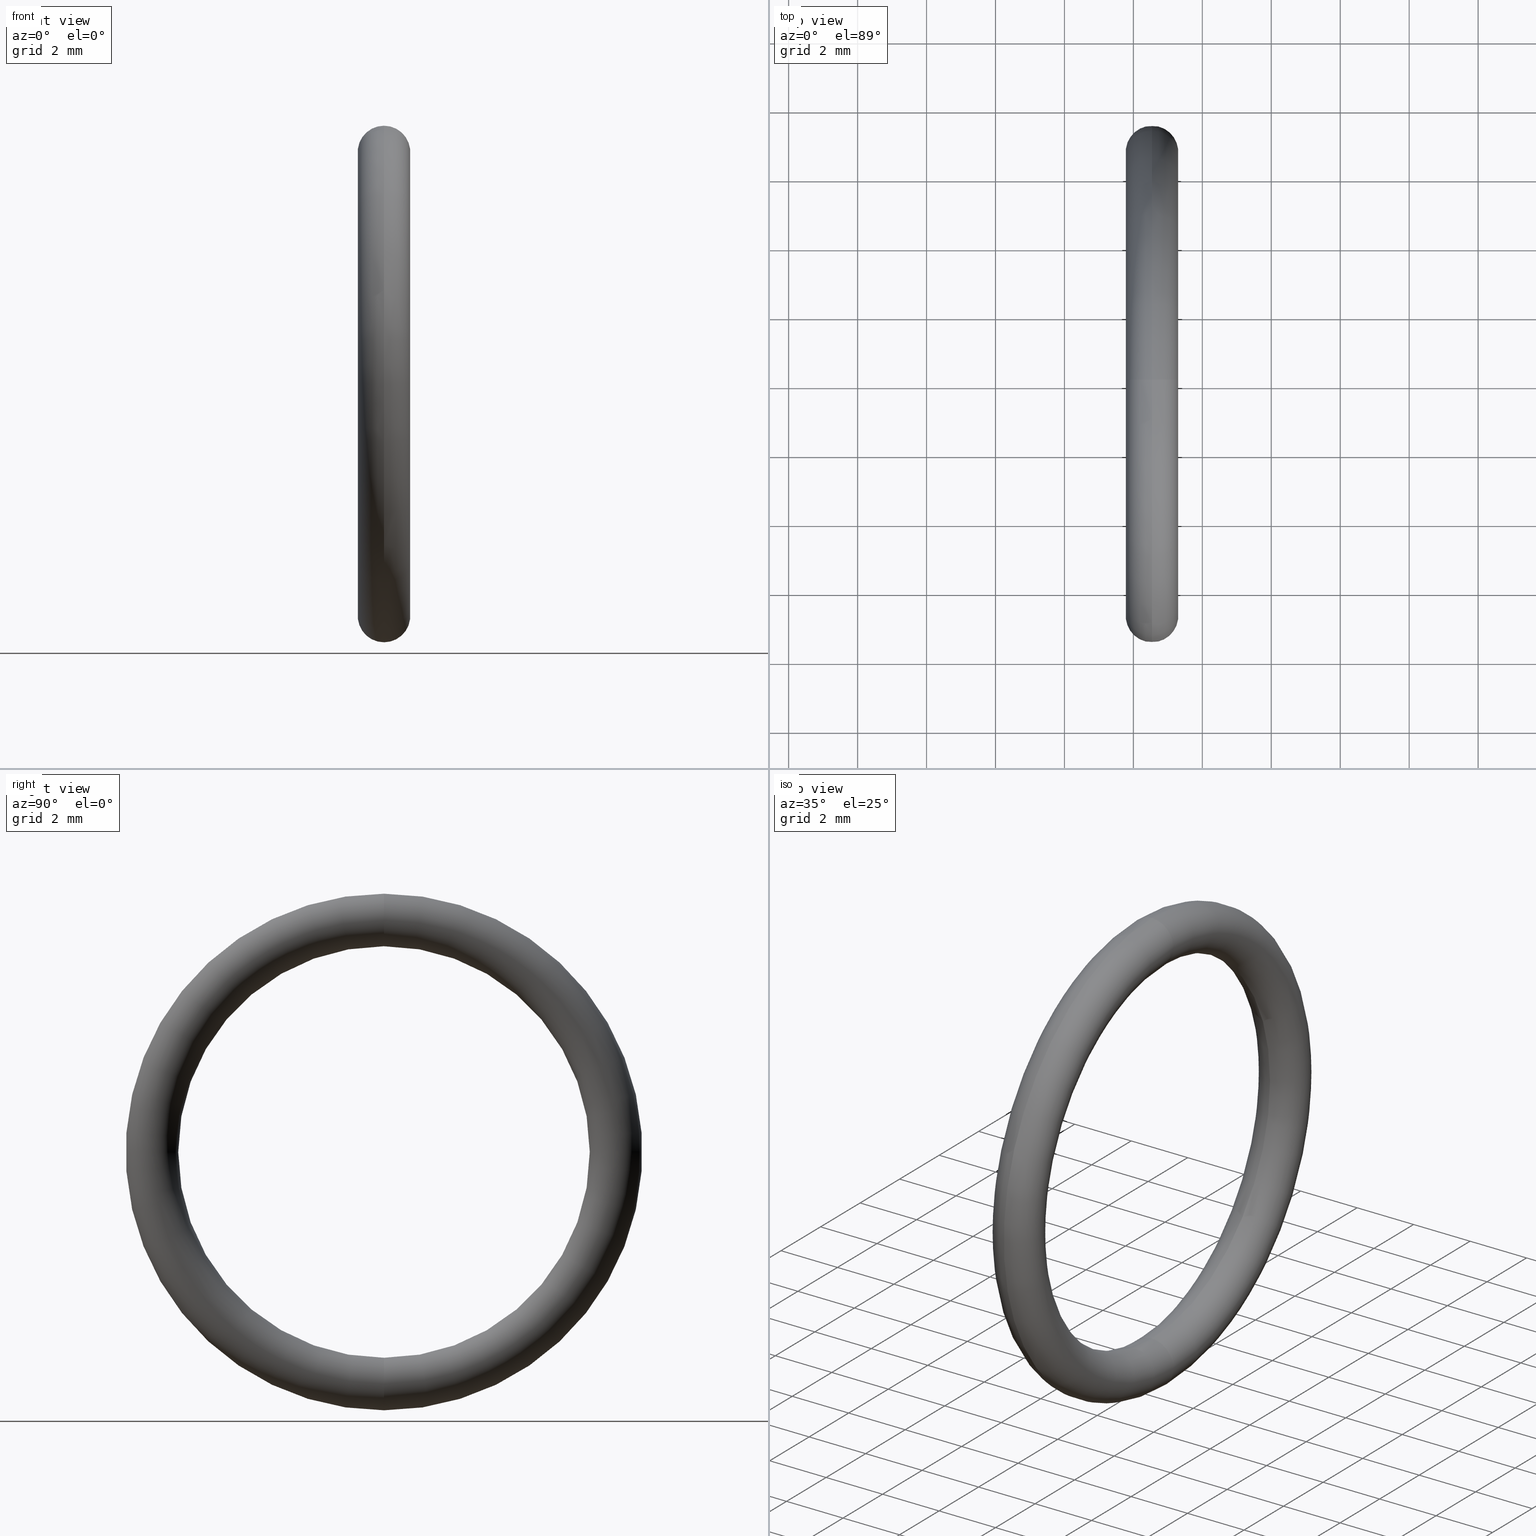
[diagram: canonical four-view strip — front | top / right | iso, engineering-drawing reading convention]
A machine part, canonical four-view strip (front | top / right | iso — engineering-drawing reading convention). The complete STEP part file that produces these views, byte-faithful:
ISO-10303-21;
HEADER;
FILE_DESCRIPTION (( 'STEP AP203' ),
    '1' );
FILE_NAME ('OM-16-BN.STEP',
    '2008-03-29T07:50:04',
    ( 'Baystate-05' ),
    ( 'BayState InfoTech' ),
    'SwSTEP 2.0',
    'SolidWorks 2007',
    '' );
FILE_SCHEMA (( 'CONFIG_CONTROL_DESIGN' ));
ENDSEC;

DATA;
#1 = CC_DESIGN_PERSON_AND_ORGANIZATION_ASSIGNMENT ( #3, #2, ( #73 ) ) ;
#2 = PERSON_AND_ORGANIZATION_ROLE ( 'creator' ) ;
#3 = PERSON_AND_ORGANIZATION ( #81, #80 ) ;
#4 = VERTEX_POINT ( 'NONE', #61 ) ;
#5 = CARTESIAN_POINT ( 'NONE',  ( 0.1000000000000000500, 0.0000000000000000000, 0.0000000000000000000 ) ) ;
#6 = ORIENTED_EDGE ( 'NONE', *, *, #35, .T. ) ;
#7 = ORIENTED_EDGE ( 'NONE', *, *, #41, .T. ) ;
#8 = ADVANCED_FACE ( 'NONE', ( #60 ), #59, .T. ) ;
#9 = ADVANCED_FACE ( 'NONE', ( #86 ), #43, .T. ) ;
#10 = EDGE_LOOP ( 'NONE', ( #37, #16, #6, #7 ) ) ;
#11 = EDGE_CURVE ( 'NONE', #4, #56, #50, .T. ) ;
#12 = EDGE_LOOP ( 'NONE', ( #39, #40, #30, #36 ) ) ;
#13 = CARTESIAN_POINT ( 'NONE',  ( 0.0000000000000000000, 0.0000000000000000000, 0.0000000000000000000 ) ) ;
#14 = VERTEX_POINT ( 'NONE', #45 ) ;
#15 = EDGE_CURVE ( 'NONE', #14, #44, #23, .T. ) ;
#16 = ORIENTED_EDGE ( 'NONE', *, *, #11, .F. ) ;
#17 = CIRCLE ( 'NONE', #126, 0.03000000000000002300 ) ;
#18 = FACE_OUTER_BOUND ( 'NONE', #34, .T. ) ;
#19 = DIRECTION ( 'NONE',  ( 0.0000000000000000000, 0.0000000000000000000, -1.000000000000000000 ) ) ;
#20 = DIRECTION ( 'NONE',  ( 0.0000000000000000000, -1.000000000000000000, 0.0000000000000000000 ) ) ;
#21 = CARTESIAN_POINT ( 'NONE',  ( 0.1000000000000000500, 0.0000000000000000000, 0.2649999999999999600 ) ) ;
#22 = AXIS2_PLACEMENT_3D ( 'NONE', #21, #20, #19 ) ;
#23 = CIRCLE ( 'NONE', #22, 0.03000000000000002300 ) ;
#24 = CARTESIAN_POINT ( 'NONE',  ( 0.1000000000000000500, 3.245314017740485600E-017, -0.2649999999999999600 ) ) ;
#25 = EDGE_CURVE ( 'NONE', #56, #4, #17, .T. ) ;
#26 = ORIENTED_EDGE ( 'NONE', *, *, #57, .T. ) ;
#27 = ADVANCED_FACE ( 'NONE', ( #18 ), #121, .T. ) ;
#28 = ADVANCED_FACE ( 'NONE', ( #122 ), #117, .T. ) ;
#29 = CLOSED_SHELL ( 'NONE', ( #8, #27, #28, #9 ) ) ;
#30 = ORIENTED_EDGE ( 'NONE', *, *, #33, .T. ) ;
#31 = EDGE_CURVE ( 'NONE', #14, #56, #111, .T. ) ;
#32 = ORIENTED_EDGE ( 'NONE', *, *, #25, .T. ) ;
#33 = EDGE_CURVE ( 'NONE', #44, #4, #105, .T. ) ;
#34 = EDGE_LOOP ( 'NONE', ( #146, #145, #32, #144 ) ) ;
#35 = EDGE_CURVE ( 'NONE', #4, #44, #100, .T. ) ;
#36 = ORIENTED_EDGE ( 'NONE', *, *, #11, .T. ) ;
#37 = ORIENTED_EDGE ( 'NONE', *, *, #57, .F. ) ;
#38 = MANIFOLD_SOLID_BREP ( 'NONE', #29 ) ;
#39 = ORIENTED_EDGE ( 'NONE', *, *, #31, .F. ) ;
#40 = ORIENTED_EDGE ( 'NONE', *, *, #41, .F. ) ;
#41 = EDGE_CURVE ( 'NONE', #44, #14, #96, .T. ) ;
#42 = ORIENTED_EDGE ( 'NONE', *, *, #15, .T. ) ;
#43 = TOROIDAL_SURFACE ( 'NONE', #55, 0.2649999999999999600, 0.03000000000000000900 ) ;
#44 = VERTEX_POINT ( 'NONE', #142 ) ;
#45 = CARTESIAN_POINT ( 'NONE',  ( 0.1000000000000000500, 0.0000000000000000000, 0.2949999999999999800 ) ) ;
#46 = DIRECTION ( 'NONE',  ( 0.0000000000000000000, -1.224646799147353500E-016, 1.000000000000000000 ) ) ;
#47 = DIRECTION ( 'NONE',  ( 0.0000000000000000000, 1.000000000000000000, 1.224646799147353200E-016 ) ) ;
#48 = CARTESIAN_POINT ( 'NONE',  ( 0.1000000000000000500, 3.245314017740485600E-017, -0.2649999999999999600 ) ) ;
#49 = AXIS2_PLACEMENT_3D ( 'NONE', #48, #47, #46 ) ;
#50 = CIRCLE ( 'NONE', #49, 0.03000000000000002300 ) ;
#51 = EDGE_LOOP ( 'NONE', ( #82, #26, #42, #58 ) ) ;
#52 = DIRECTION ( 'NONE',  ( 0.0000000000000000000, 0.0000000000000000000, 1.000000000000000000 ) ) ;
#53 = DIRECTION ( 'NONE',  ( -1.000000000000000000, 0.0000000000000000000, 0.0000000000000000000 ) ) ;
#54 = CARTESIAN_POINT ( 'NONE',  ( 0.1000000000000000500, 0.0000000000000000000, 0.0000000000000000000 ) ) ;
#55 = AXIS2_PLACEMENT_3D ( 'NONE', #54, #53, #52 ) ;
#56 = VERTEX_POINT ( 'NONE', #141 ) ;
#57 = EDGE_CURVE ( 'NONE', #56, #14, #140, .T. ) ;
#58 = ORIENTED_EDGE ( 'NONE', *, *, #35, .F. ) ;
#59 = TOROIDAL_SURFACE ( 'NONE', #85, 0.2649999999999999600, 0.03000000000000000900 ) ;
#60 = FACE_OUTER_BOUND ( 'NONE', #51, .T. ) ;
#61 = CARTESIAN_POINT ( 'NONE',  ( 0.1000000000000000500, 2.877919977996279200E-017, -0.2349999999999999600 ) ) ;
#62 = CC_DESIGN_APPROVAL ( #70, ( #73 ) ) ;
#63 = APPROVAL_DATE_TIME ( #64, #70 ) ;
#64 = DATE_AND_TIME ( #65, #66 ) ;
#65 = CALENDAR_DATE ( 2008, 29, 3 ) ;
#66 = LOCAL_TIME ( 13, 20, 4.000000000000000000, #67 ) ;
#67 = COORDINATED_UNIVERSAL_TIME_OFFSET ( 5, 30, .AHEAD. ) ;
#68 = APPROVAL_PERSON_ORGANIZATION ( #72, #70, #69 ) ;
#69 = APPROVAL_ROLE ( '' ) ;
#70 = APPROVAL ( #71, 'UNSPECIFIED' ) ;
#71 = APPROVAL_STATUS ( 'not_yet_approved' ) ;
#72 = PERSON_AND_ORGANIZATION ( #81, #80 ) ;
#73 = PRODUCT_DEFINITION ( 'UNKNOWN', '', #152, #74 ) ;
#74 = DESIGN_CONTEXT ( 'detailed design', #76, 'design' ) ;
#75 = APPLICATION_PROTOCOL_DEFINITION ( 'international standard', 'config_control_design', 1994, #76 ) ;
#76 = APPLICATION_CONTEXT ( 'configuration controlled 3d designs of mechanical parts and assemblies' ) ;
#77 = CC_DESIGN_PERSON_AND_ORGANIZATION_ASSIGNMENT ( #79, #78, ( #87 ) ) ;
#78 = PERSON_AND_ORGANIZATION_ROLE ( 'design_owner' ) ;
#79 = PERSON_AND_ORGANIZATION ( #81, #80 ) ;
#80 = ORGANIZATION ( 'UNSPECIFIED', 'UNSPECIFIED', '' ) ;
#81 = PERSON ( 'UNSPECIFIED', 'UNSPECIFIED', 'UNSPECIFIED', ('UNSPECIFIED'), ('UNSPECIFIED'), ('UNSPECIFIED') ) ;
#82 = ORIENTED_EDGE ( 'NONE', *, *, #25, .F. ) ;
#83 = DIRECTION ( 'NONE',  ( 0.0000000000000000000, 0.0000000000000000000, 1.000000000000000000 ) ) ;
#84 = DIRECTION ( 'NONE',  ( -1.000000000000000000, 0.0000000000000000000, 0.0000000000000000000 ) ) ;
#85 = AXIS2_PLACEMENT_3D ( 'NONE', #5, #84, #83 ) ;
#86 = FACE_OUTER_BOUND ( 'NONE', #10, .T. ) ;
#87 = PRODUCT ( 'OM-16-BN', 'OM-16-BN', '', ( #88 ) ) ;
#88 = MECHANICAL_CONTEXT ( 'NONE', #90, 'mechanical' ) ;
#89 = APPLICATION_PROTOCOL_DEFINITION ( 'international standard', 'config_control_design', 1994, #90 ) ;
#90 = APPLICATION_CONTEXT ( 'configuration controlled 3d designs of mechanical parts and assemblies' ) ;
#91 = DIRECTION ( 'NONE',  ( 1.000000000000000000, 0.0000000000000000000, 0.0000000000000000000 ) ) ;
#92 = DIRECTION ( 'NONE',  ( 0.0000000000000000000, 0.0000000000000000000, 1.000000000000000000 ) ) ;
#93 = AXIS2_PLACEMENT_3D ( 'NONE', #13, #92, #91 ) ;
#94 = DIRECTION ( 'NONE',  ( 0.0000000000000000000, -1.000000000000000000, 0.0000000000000000000 ) ) ;
#95 = AXIS2_PLACEMENT_3D ( 'NONE', #101, #94, #143 ) ;
#96 = CIRCLE ( 'NONE', #95, 0.03000000000000002300 ) ;
#97 = DIRECTION ( 'NONE',  ( 0.0000000000000000000, 0.0000000000000000000, 1.000000000000000000 ) ) ;
#98 = DIRECTION ( 'NONE',  ( -1.000000000000000000, 0.0000000000000000000, 0.0000000000000000000 ) ) ;
#99 = AXIS2_PLACEMENT_3D ( 'NONE', #106, #98, #97 ) ;
#100 = CIRCLE ( 'NONE', #99, 0.2349999999999999600 ) ;
#101 = CARTESIAN_POINT ( 'NONE',  ( 0.1000000000000000500, 0.0000000000000000000, 0.2649999999999999600 ) ) ;
#102 = DIRECTION ( 'NONE',  ( 0.0000000000000000000, 0.0000000000000000000, 1.000000000000000000 ) ) ;
#103 = DIRECTION ( 'NONE',  ( -1.000000000000000000, 0.0000000000000000000, 0.0000000000000000000 ) ) ;
#104 = AXIS2_PLACEMENT_3D ( 'NONE', #112, #103, #102 ) ;
#105 = CIRCLE ( 'NONE', #104, 0.2349999999999999600 ) ;
#106 = CARTESIAN_POINT ( 'NONE',  ( 0.1000000000000000500, 0.0000000000000000000, 0.0000000000000000000 ) ) ;
#107 = DIRECTION ( 'NONE',  ( 0.0000000000000000000, 0.0000000000000000000, 1.000000000000000000 ) ) ;
#108 = DIRECTION ( 'NONE',  ( -1.000000000000000000, 0.0000000000000000000, 0.0000000000000000000 ) ) ;
#109 = CARTESIAN_POINT ( 'NONE',  ( 0.1000000000000000500, 0.0000000000000000000, 0.0000000000000000000 ) ) ;
#110 = AXIS2_PLACEMENT_3D ( 'NONE', #109, #108, #107 ) ;
#111 = CIRCLE ( 'NONE', #110, 0.2949999999999999800 ) ;
#112 = CARTESIAN_POINT ( 'NONE',  ( 0.1000000000000000500, 0.0000000000000000000, 0.0000000000000000000 ) ) ;
#113 = DIRECTION ( 'NONE',  ( 0.0000000000000000000, 0.0000000000000000000, 1.000000000000000000 ) ) ;
#114 = DIRECTION ( 'NONE',  ( -1.000000000000000000, 0.0000000000000000000, 0.0000000000000000000 ) ) ;
#115 = CARTESIAN_POINT ( 'NONE',  ( 0.1000000000000000500, 0.0000000000000000000, 0.0000000000000000000 ) ) ;
#116 = AXIS2_PLACEMENT_3D ( 'NONE', #115, #114, #113 ) ;
#117 = TOROIDAL_SURFACE ( 'NONE', #116, 0.2649999999999999600, 0.03000000000000000900 ) ;
#118 = DIRECTION ( 'NONE',  ( 0.0000000000000000000, 0.0000000000000000000, 1.000000000000000000 ) ) ;
#119 = DIRECTION ( 'NONE',  ( -1.000000000000000000, 0.0000000000000000000, 0.0000000000000000000 ) ) ;
#120 = AXIS2_PLACEMENT_3D ( 'NONE', #123, #119, #118 ) ;
#121 = TOROIDAL_SURFACE ( 'NONE', #120, 0.2649999999999999600, 0.03000000000000000900 ) ;
#122 = FACE_OUTER_BOUND ( 'NONE', #12, .T. ) ;
#123 = CARTESIAN_POINT ( 'NONE',  ( 0.1000000000000000500, 0.0000000000000000000, 0.0000000000000000000 ) ) ;
#124 = DIRECTION ( 'NONE',  ( 0.0000000000000000000, -1.224646799147353500E-016, 1.000000000000000000 ) ) ;
#125 = DIRECTION ( 'NONE',  ( 0.0000000000000000000, 1.000000000000000000, 1.224646799147353200E-016 ) ) ;
#126 = AXIS2_PLACEMENT_3D ( 'NONE', #24, #125, #124 ) ;
#127 = ADVANCED_BREP_SHAPE_REPRESENTATION ( 'OM-16-BN', ( #38, #93 ), #128 ) ;
#128 =( GEOMETRIC_REPRESENTATION_CONTEXT ( 3 ) GLOBAL_UNCERTAINTY_ASSIGNED_CONTEXT ( ( #129 ) ) GLOBAL_UNIT_ASSIGNED_CONTEXT ( ( #132, #131, #130 ) ) REPRESENTATION_CONTEXT ( 'NONE', 'WORKASPACE' ) );
#129 = UNCERTAINTY_MEASURE_WITH_UNIT (LENGTH_MEASURE( 1.000000000000000100E-005 ), #132, 'distance_accuracy_value', 'NONE');
#130 =( NAMED_UNIT ( * ) SI_UNIT ( $, .STERADIAN. ) SOLID_ANGLE_UNIT ( ) );
#131 =( NAMED_UNIT ( * ) PLANE_ANGLE_UNIT ( ) SI_UNIT ( $, .RADIAN. ) );
#132 =( CONVERSION_BASED_UNIT ( 'INCH', #133 ) LENGTH_UNIT ( ) NAMED_UNIT ( #134 ) );
#133 = LENGTH_MEASURE_WITH_UNIT ( LENGTH_MEASURE( 0.02539999999999999900 ), #135 );
#134 = DIMENSIONAL_EXPONENTS ( 1.000000000000000000, 0.0000000000000000000, 0.0000000000000000000, 0.0000000000000000000, 0.0000000000000000000, 0.0000000000000000000, 0.0000000000000000000 ) ;
#135 =( LENGTH_UNIT ( ) NAMED_UNIT ( * ) SI_UNIT ( $, .METRE. ) );
#136 = DIRECTION ( 'NONE',  ( 0.0000000000000000000, 0.0000000000000000000, 1.000000000000000000 ) ) ;
#137 = DIRECTION ( 'NONE',  ( -1.000000000000000000, 0.0000000000000000000, 0.0000000000000000000 ) ) ;
#138 = CARTESIAN_POINT ( 'NONE',  ( 0.1000000000000000500, 0.0000000000000000000, 0.0000000000000000000 ) ) ;
#139 = AXIS2_PLACEMENT_3D ( 'NONE', #138, #137, #136 ) ;
#140 = CIRCLE ( 'NONE', #139, 0.2949999999999999800 ) ;
#141 = CARTESIAN_POINT ( 'NONE',  ( 0.1000000000000000500, 3.612708057484692000E-017, -0.2949999999999999800 ) ) ;
#142 = CARTESIAN_POINT ( 'NONE',  ( 0.1000000000000000500, 0.0000000000000000000, 0.2349999999999999600 ) ) ;
#143 = DIRECTION ( 'NONE',  ( 0.0000000000000000000, 0.0000000000000000000, -1.000000000000000000 ) ) ;
#144 = ORIENTED_EDGE ( 'NONE', *, *, #33, .F. ) ;
#145 = ORIENTED_EDGE ( 'NONE', *, *, #31, .T. ) ;
#146 = ORIENTED_EDGE ( 'NONE', *, *, #15, .F. ) ;
#147 = CALENDAR_DATE ( 2008, 29, 3 ) ;
#148 = LOCAL_TIME ( 13, 20, 4.000000000000000000, #149 ) ;
#149 = COORDINATED_UNIVERSAL_TIME_OFFSET ( 5, 30, .AHEAD. ) ;
#150 = APPROVAL_PERSON_ORGANIZATION ( #159, #151, #157 ) ;
#151 = APPROVAL ( #158, 'UNSPECIFIED' ) ;
#152 = PRODUCT_DEFINITION_FORMATION_WITH_SPECIFIED_SOURCE ( 'ANY', '', #87, .NOT_KNOWN. ) ;
#153 = CC_DESIGN_DATE_AND_TIME_ASSIGNMENT ( #167, #166, ( #73 ) ) ;
#154 = CALENDAR_DATE ( 2008, 29, 3 ) ;
#155 = COORDINATED_UNIVERSAL_TIME_OFFSET ( 5, 30, .AHEAD. ) ;
#156 = LOCAL_TIME ( 13, 20, 4.000000000000000000, #155 ) ;
#157 = APPROVAL_ROLE ( '' ) ;
#158 = APPROVAL_STATUS ( 'not_yet_approved' ) ;
#159 = PERSON_AND_ORGANIZATION ( #81, #80 ) ;
#160 = CC_DESIGN_PERSON_AND_ORGANIZATION_ASSIGNMENT ( #162, #161, ( #152 ) ) ;
#161 = PERSON_AND_ORGANIZATION_ROLE ( 'creator' ) ;
#162 = PERSON_AND_ORGANIZATION ( #81, #80 ) ;
#163 = CC_DESIGN_APPROVAL ( #151, ( #152 ) ) ;
#164 = APPROVAL_DATE_TIME ( #165, #151 ) ;
#165 = DATE_AND_TIME ( #147, #148 ) ;
#166 = DATE_TIME_ROLE ( 'creation_date' ) ;
#167 = DATE_AND_TIME ( #154, #156 ) ;
#168 = SHAPE_DEFINITION_REPRESENTATION ( #169, #127 ) ;
#169 = PRODUCT_DEFINITION_SHAPE ( 'NONE', 'NONE',  #73 ) ;
#170 = PRODUCT_RELATED_PRODUCT_CATEGORY ( 'detail', '', ( #87 ) ) ;
#171 = CC_DESIGN_SECURITY_CLASSIFICATION ( #192, ( #152 ) ) ;
#172 = CC_DESIGN_APPROVAL ( #180, ( #192 ) ) ;
#173 = APPROVAL_DATE_TIME ( #174, #180 ) ;
#174 = DATE_AND_TIME ( #175, #176 ) ;
#175 = CALENDAR_DATE ( 2008, 29, 3 ) ;
#176 = LOCAL_TIME ( 13, 20, 4.000000000000000000, #177 ) ;
#177 = COORDINATED_UNIVERSAL_TIME_OFFSET ( 5, 30, .AHEAD. ) ;
#178 = APPROVAL_PERSON_ORGANIZATION ( #182, #180, #179 ) ;
#179 = APPROVAL_ROLE ( '' ) ;
#180 = APPROVAL ( #181, 'UNSPECIFIED' ) ;
#181 = APPROVAL_STATUS ( 'not_yet_approved' ) ;
#182 = PERSON_AND_ORGANIZATION ( #81, #80 ) ;
#183 = CC_DESIGN_DATE_AND_TIME_ASSIGNMENT ( #185, #184, ( #192 ) ) ;
#184 = DATE_TIME_ROLE ( 'classification_date' ) ;
#185 = DATE_AND_TIME ( #186, #187 ) ;
#186 = CALENDAR_DATE ( 2008, 29, 3 ) ;
#187 = LOCAL_TIME ( 13, 20, 4.000000000000000000, #188 ) ;
#188 = COORDINATED_UNIVERSAL_TIME_OFFSET ( 5, 30, .AHEAD. ) ;
#189 = CC_DESIGN_PERSON_AND_ORGANIZATION_ASSIGNMENT ( #191, #190, ( #192 ) ) ;
#190 = PERSON_AND_ORGANIZATION_ROLE ( 'classification_officer' ) ;
#191 = PERSON_AND_ORGANIZATION ( #81, #80 ) ;
#192 = SECURITY_CLASSIFICATION ( '', '', #193 ) ;
#193 = SECURITY_CLASSIFICATION_LEVEL ( 'unclassified' ) ;
#194 = CC_DESIGN_PERSON_AND_ORGANIZATION_ASSIGNMENT ( #196, #195, ( #152 ) ) ;
#195 = PERSON_AND_ORGANIZATION_ROLE ( 'design_supplier' ) ;
#196 = PERSON_AND_ORGANIZATION ( #81, #80 ) ;
ENDSEC;
END-ISO-10303-21;
